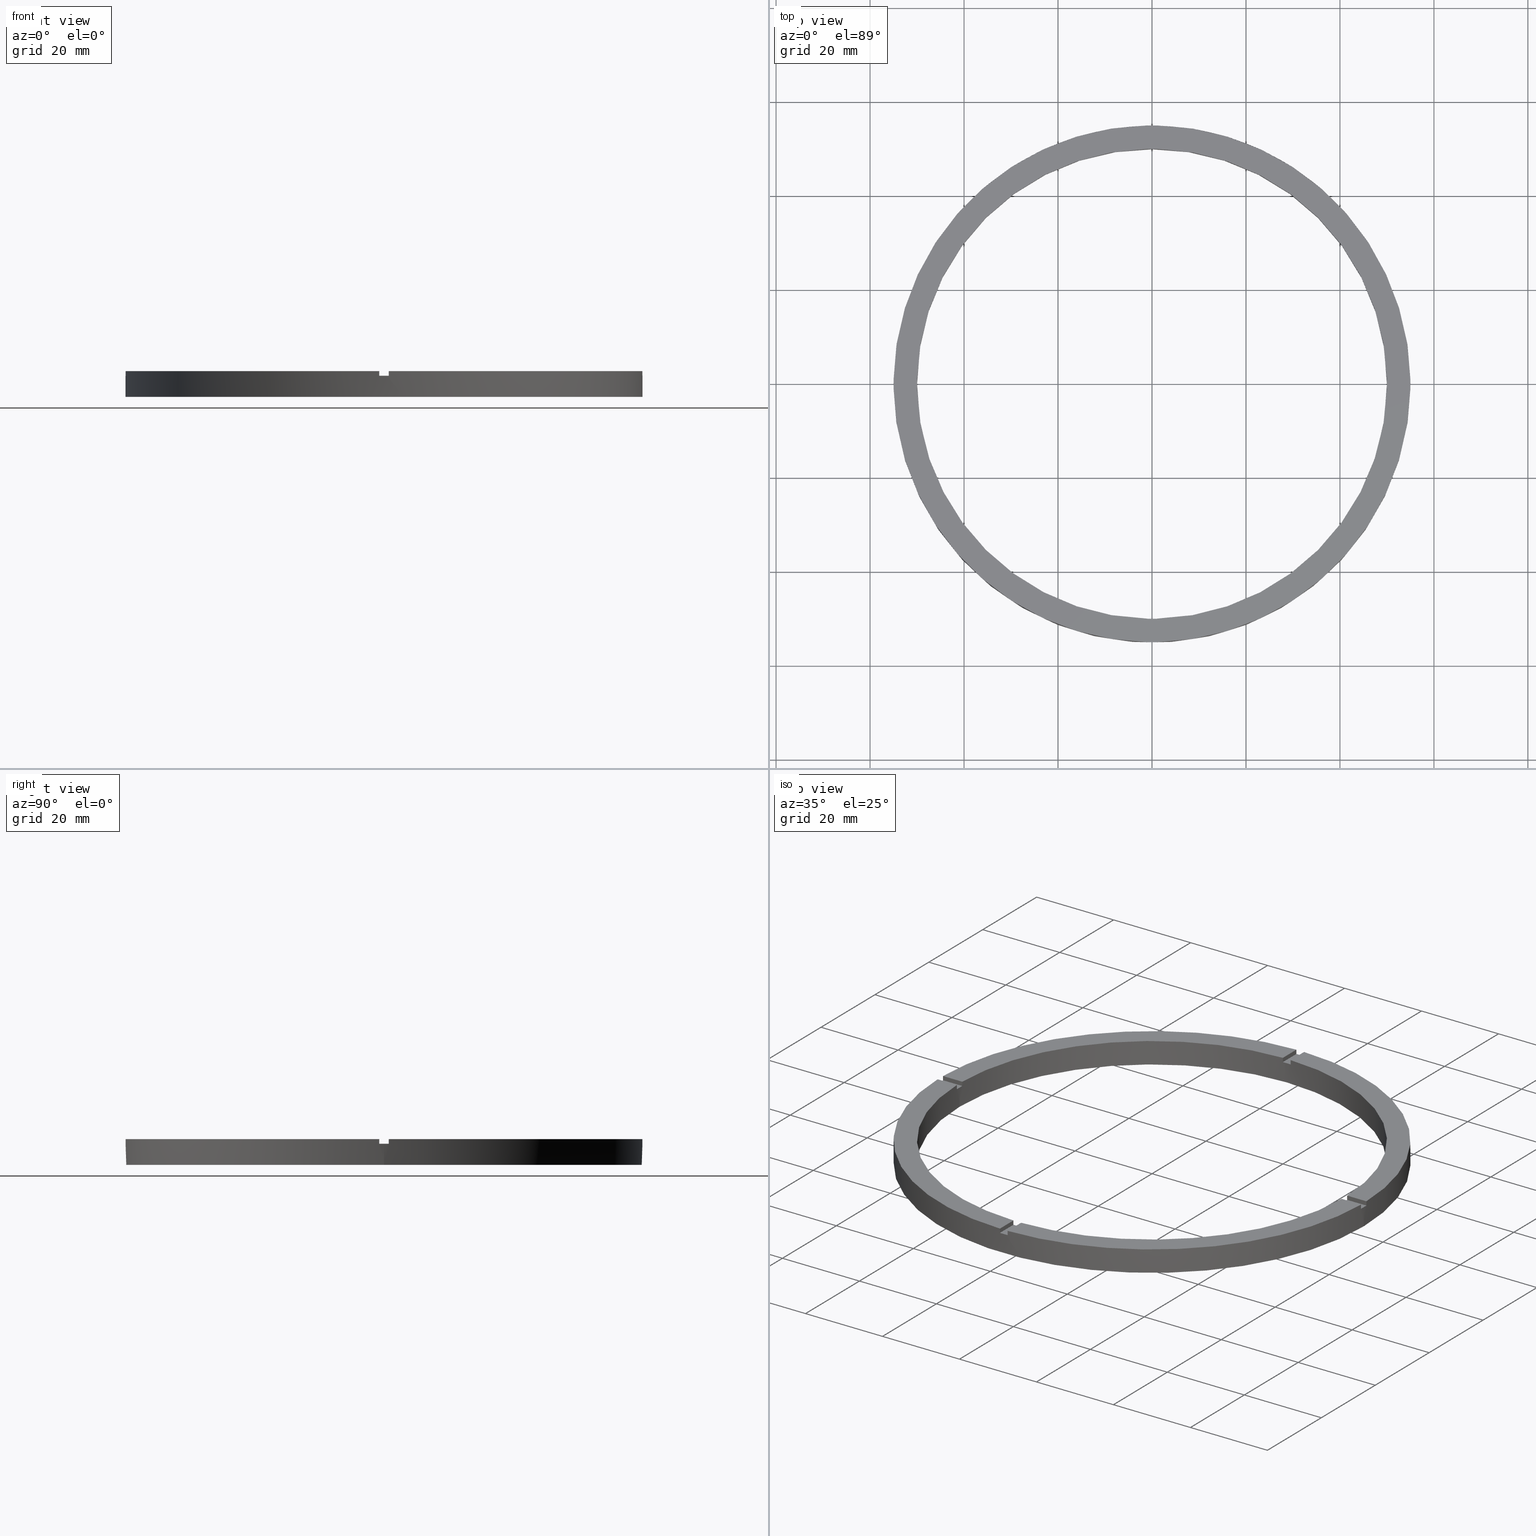
[diagram: canonical four-view strip — front | top / right | iso, engineering-drawing reading convention]
A machine part, canonical four-view strip (front | top / right | iso — engineering-drawing reading convention). The complete STEP part file that produces these views, byte-faithful:
ISO-10303-21;
HEADER;
FILE_DESCRIPTION (( 'STEP AP203' ),
    '1' );
FILE_NAME ('514225.step',
    '2024-12-26T02:49:54',
    ( 'MSI' ),
    ( '' ),
    'SwSTEP 2.0',
    'SolidWorks 2020',
    '' );
FILE_SCHEMA (( 'CONFIG_CONTROL_DESIGN' ));
ENDSEC;

DATA;
#1 = PLANE ( 'NONE',  #35 ) ;
#2 = AXIS2_PLACEMENT_3D ( 'NONE', #80, #230, #30 ) ;
#3 = DIRECTION ( 'NONE',  ( 0.000000000000000000, 0.000000000000000000, 1.000000000000000000 ) ) ;
#4 = CC_DESIGN_PERSON_AND_ORGANIZATION_ASSIGNMENT ( #600, #377, ( #568 ) ) ;
#5 = AXIS2_PLACEMENT_3D ( 'NONE', #548, #639, #750 ) ;
#6 = CARTESIAN_POINT ( 'NONE',  ( 49.98999899979995831, 0.9999999999998454570, 5.500000000000000000 ) ) ;
#7 = CARTESIAN_POINT ( 'NONE',  ( 0.9999999999999726885, 45.00000000000000000, 4.500000000000000000 ) ) ;
#8 = EDGE_CURVE ( 'NONE', #748, #681, #470, .T. ) ;
#9 = CARTESIAN_POINT ( 'NONE',  ( 0.000000000000000000, 0.000000000000000000, 4.500000000000000000 ) ) ;
#10 = CC_DESIGN_APPROVAL ( #244, ( #626 ) ) ;
#11 = PLANE ( 'NONE',  #283 ) ;
#12 = CIRCLE ( 'NONE', #231, 55.00000000000000000 ) ;
#13 = EDGE_CURVE ( 'NONE', #445, #421, #239, .T. ) ;
#14 = CARTESIAN_POINT ( 'NONE',  ( 54.99090833947008150, 0.9999999999998459010, 5.500000000000000000 ) ) ;
#15 = VECTOR ( 'NONE', #529, 1000.000000000000000 ) ;
#16 = DIRECTION ( 'NONE',  ( 0.000000000000000000, -0.000000000000000000, 1.000000000000000000 ) ) ;
#17 = LINE ( 'NONE', #228, #298 ) ;
#18 = DIRECTION ( 'NONE',  ( 1.000000000000000000, 0.000000000000000000, -0.000000000000000000 ) ) ;
#19 = VECTOR ( 'NONE', #368, 1000.000000000000000 ) ;
#20 = DIRECTION ( 'NONE',  ( 0.000000000000000000, 0.000000000000000000, 1.000000000000000000 ) ) ;
#21 = VECTOR ( 'NONE', #277, 1000.000000000000000 ) ;
#22 = LINE ( 'NONE', #579, #560 ) ;
#23 = FACE_OUTER_BOUND ( 'NONE', #212, .T. ) ;
#24 = PRODUCT_RELATED_PRODUCT_CATEGORY ( 'detail', '', ( #568 ) ) ;
#25 = LINE ( 'NONE', #289, #286 ) ;
#26 = AXIS2_PLACEMENT_3D ( 'NONE', #131, #581, #495 ) ;
#27 = VECTOR ( 'NONE', #351, 1000.000000000000000 ) ;
#28 = LINE ( 'NONE', #218, #291 ) ;
#29 = EDGE_CURVE ( 'NONE', #745, #480, #249, .T. ) ;
#30 = DIRECTION ( 'NONE',  ( -1.000000000000000000, 0.000000000000000000, 0.000000000000000000 ) ) ;
#31 = ADVANCED_FACE ( 'NONE', ( #243, #245 ), #585, .F. ) ;
#32 = DIRECTION ( 'NONE',  ( 0.000000000000000000, -0.000000000000000000, 1.000000000000000000 ) ) ;
#33 = CYLINDRICAL_SURFACE ( 'NONE', #345, 55.00000000000000000 ) ;
#34 = PERSON_AND_ORGANIZATION_ROLE ( 'creator' ) ;
#35 = AXIS2_PLACEMENT_3D ( 'NONE', #272, #520, #92 ) ;
#36 = LINE ( 'NONE', #241, #15 ) ;
#37 = CARTESIAN_POINT ( 'NONE',  ( -49.98999899979995121, -1.000000000000031974, 5.500000000000000000 ) ) ;
#38 = DIRECTION ( 'NONE',  ( 0.000000000000000000, 0.000000000000000000, 1.000000000000000000 ) ) ;
#39 = DATE_TIME_ROLE ( 'creation_date' ) ;
#40 = VECTOR ( 'NONE', #370, 1000.000000000000000 ) ;
#41 = PLANE ( 'NONE',  #423 ) ;
#42 = FACE_OUTER_BOUND ( 'NONE', #690, .T. ) ;
#43 = PLANE ( 'NONE',  #371 ) ;
#44 = LINE ( 'NONE', #756, #40 ) ;
#45 = PERSON_AND_ORGANIZATION ( #313, #81 ) ;
#46 = EDGE_CURVE ( 'NONE', #493, #222, #508, .T. ) ;
#47 = PERSON_AND_ORGANIZATION ( #313, #81 ) ;
#48 = PERSON_AND_ORGANIZATION ( #313, #81 ) ;
#49 = CARTESIAN_POINT ( 'NONE',  ( 0.9999999999998439026, -49.98999899979995831, 4.500000000000000000 ) ) ;
#50 = AXIS2_PLACEMENT_3D ( 'NONE', #772, #38, #778 ) ;
#51 = DATE_AND_TIME ( #347, #603 ) ;
#52 = APPROVAL_DATE_TIME ( #66, #597 ) ;
#53 = VECTOR ( 'NONE', #572, 1000.000000000000000 ) ;
#54 = DIRECTION ( 'NONE',  ( 0.000000000000000000, 0.000000000000000000, 1.000000000000000000 ) ) ;
#55 = DIRECTION ( 'NONE',  ( 0.000000000000000000, 0.000000000000000000, -1.000000000000000000 ) ) ;
#56 = EDGE_CURVE ( 'NONE', #482, #685, #247, .T. ) ;
#57 = CARTESIAN_POINT ( 'NONE',  ( -1.000000000000156097, -49.98999899979995121, 5.500000000000000000 ) ) ;
#58 = AXIS2_PLACEMENT_3D ( 'NONE', #158, #588, #253 ) ;
#59 = DIRECTION ( 'NONE',  ( 1.301042606982605074E-16, -1.000000000000000000, 0.000000000000000000 ) ) ;
#60 = CARTESIAN_POINT ( 'NONE',  ( 0.000000000000000000, 0.000000000000000000, 4.500000000000000000 ) ) ;
#61 = LINE ( 'NONE', #617, #308 ) ;
#62 = DIRECTION ( 'NONE',  ( -1.000000000000000000, 0.000000000000000000, 0.000000000000000000 ) ) ;
#63 = LOCAL_TIME ( 10, 49, 54.00000000000000000, #604 ) ;
#64 = EDGE_CURVE ( 'NONE', #681, #203, #509, .T. ) ;
#65 = DIRECTION ( 'NONE',  ( 1.000000000000000000, 0.000000000000000000, 0.000000000000000000 ) ) ;
#66 = DATE_AND_TIME ( #318, #79 ) ;
#67 = DIRECTION ( 'NONE',  ( -1.000000000000000000, 0.000000000000000000, 0.000000000000000000 ) ) ;
#68 = CARTESIAN_POINT ( 'NONE',  ( 0.000000000000000000, 0.000000000000000000, 4.500000000000000000 ) ) ;
#69 = PERSON_AND_ORGANIZATION ( #313, #81 ) ;
#70 = CALENDAR_DATE ( 2024, 26, 12 ) ;
#71 = CC_DESIGN_PERSON_AND_ORGANIZATION_ASSIGNMENT ( #45, #34, ( #606 ) ) ;
#72 = DIRECTION ( 'NONE',  ( -1.301042606982605074E-16, 1.000000000000000000, -0.000000000000000000 ) ) ;
#73 = DIRECTION ( 'NONE',  ( 1.000000000000000000, 0.000000000000000000, 0.000000000000000000 ) ) ;
#74 = AXIS2_PLACEMENT_3D ( 'NONE', #631, #731, #265 ) ;
#75 = CALENDAR_DATE ( 2024, 26, 12 ) ;
#76 = DIRECTION ( 'NONE',  ( -1.301042606982605074E-16, 1.000000000000000000, 0.000000000000000000 ) ) ;
#77 = ADVANCED_FACE ( 'NONE', ( #42 ), #331, .F. ) ;
#78 = PERSON_AND_ORGANIZATION_ROLE ( 'design_supplier' ) ;
#79 = LOCAL_TIME ( 10, 49, 54.00000000000000000, #339 ) ;
#80 = CARTESIAN_POINT ( 'NONE',  ( 0.000000000000000000, 0.000000000000000000, 5.500000000000000000 ) ) ;
#81 = ORGANIZATION ( 'δָ��', 'δָ��', '' ) ;
#82 = COORDINATED_UNIVERSAL_TIME_OFFSET ( 8, 0, .AHEAD. ) ;
#83 = CC_DESIGN_SECURITY_CLASSIFICATION ( #374, ( #626 ) ) ;
#84 = AXIS2_PLACEMENT_3D ( 'NONE', #489, #516, #76 ) ;
#85 = DIRECTION ( 'NONE',  ( -0.000000000000000000, -1.000000000000000000, -0.000000000000000000 ) ) ;
#86 = DIRECTION ( 'NONE',  ( -0.000000000000000000, 0.000000000000000000, 1.000000000000000000 ) ) ;
#87 = EDGE_CURVE ( 'NONE', #748, #702, #321, .T. ) ;
#88 = AXIS2_PLACEMENT_3D ( 'NONE', #625, #376, #512 ) ;
#89 = DIRECTION ( 'NONE',  ( 8.673617379884034239E-17, -1.000000000000000000, 0.000000000000000000 ) ) ;
#90 = DIRECTION ( 'NONE',  ( 1.000000000000000000, 0.000000000000000000, 0.000000000000000000 ) ) ;
#91 = EDGE_CURVE ( 'NONE', #196, #687, #61, .T. ) ;
#92 = DIRECTION ( 'NONE',  ( 1.000000000000000000, 0.000000000000000000, -0.000000000000000000 ) ) ;
#93 = CARTESIAN_POINT ( 'NONE',  ( -55.00000000000000000, 0.000000000000000000, 4.500000000000000000 ) ) ;
#94 = DIRECTION ( 'NONE',  ( 1.000000000000000000, -0.000000000000000000, 0.000000000000000000 ) ) ;
#95 = CARTESIAN_POINT ( 'NONE',  ( 55.00000000000000000, 6.735557395310442615E-15, 4.500000000000000000 ) ) ;
#96 = DIRECTION ( 'NONE',  ( 1.000000000000000000, 0.000000000000000000, -0.000000000000000000 ) ) ;
#97 = DIRECTION ( 'NONE',  ( -1.000000000000000000, -8.673617379884034239E-17, 0.000000000000000000 ) ) ;
#98 = DIRECTION ( 'NONE',  ( -0.000000000000000000, -1.000000000000000000, -0.000000000000000000 ) ) ;
#99 = DIRECTION ( 'NONE',  ( -0.000000000000000000, -0.000000000000000000, -1.000000000000000000 ) ) ;
#100 = CARTESIAN_POINT ( 'NONE',  ( -55.00000000000000000, 0.000000000000000000, 5.500000000000000000 ) ) ;
#101 = EDGE_CURVE ( 'NONE', #481, #222, #569, .T. ) ;
#102 = DIRECTION ( 'NONE',  ( 1.000000000000000000, 0.000000000000000000, 0.000000000000000000 ) ) ;
#103 = AXIS2_PLACEMENT_3D ( 'NONE', #302, #94, #55 ) ;
#104 = LINE ( 'NONE', #251, #634 ) ;
#105 = DIRECTION ( 'NONE',  ( 0.000000000000000000, 0.000000000000000000, 1.000000000000000000 ) ) ;
#106 = CARTESIAN_POINT ( 'NONE',  ( 0.000000000000000000, 0.000000000000000000, 5.500000000000000000 ) ) ;
#107 = VECTOR ( 'NONE', #360, 1000.000000000000000 ) ;
#108 = LINE ( 'NONE', #317, #392 ) ;
#109 = EDGE_CURVE ( 'NONE', #435, #187, #558, .T. ) ;
#110 = CIRCLE ( 'NONE', #762, 55.00000000000000000 ) ;
#111 = FACE_OUTER_BOUND ( 'NONE', #198, .T. ) ;
#112 = DIRECTION ( 'NONE',  ( -0.000000000000000000, -0.000000000000000000, -1.000000000000000000 ) ) ;
#113 = VECTOR ( 'NONE', #536, 1000.000000000000000 ) ;
#114 = AXIS2_PLACEMENT_3D ( 'NONE', #400, #559, #543 ) ;
#115 = LINE ( 'NONE', #744, #379 ) ;
#116 = EDGE_CURVE ( 'NONE', #447, #457, #297, .T. ) ;
#117 = CIRCLE ( 'NONE', #531, 50.00000000000000000 ) ;
#118 = FACE_OUTER_BOUND ( 'NONE', #448, .T. ) ;
#119 = PLANE ( 'NONE',  #557 ) ;
#120 = FACE_OUTER_BOUND ( 'NONE', #224, .T. ) ;
#121 = LINE ( 'NONE', #598, #113 ) ;
#122 = CC_DESIGN_DATE_AND_TIME_ASSIGNMENT ( #573, #39, ( #606 ) ) ;
#123 = CIRCLE ( 'NONE', #5, 50.00000000000000000 ) ;
#124 = VECTOR ( 'NONE', #20, 1000.000000000000000 ) ;
#125 = ADVANCED_FACE ( 'NONE', ( #304 ), #119, .T. ) ;
#126 = APPLICATION_CONTEXT ( 'configuration controlled 3d designs of mechanical parts and assemblies' ) ;
#127 = EDGE_CURVE ( 'NONE', #438, #151, #17, .T. ) ;
#128 = VECTOR ( 'NONE', #743, 1000.000000000000000 ) ;
#129 = CIRCLE ( 'NONE', #316, 55.00000000000000000 ) ;
#130 = LINE ( 'NONE', #301, #128 ) ;
#131 = CARTESIAN_POINT ( 'NONE',  ( 0.000000000000000000, 0.000000000000000000, 5.500000000000000000 ) ) ;
#132 = DIRECTION ( 'NONE',  ( 1.000000000000000000, 1.951563910473907735E-16, -0.000000000000000000 ) ) ;
#133 = VECTOR ( 'NONE', #59, 1000.000000000000000 ) ;
#134 = ADVANCED_FACE ( 'NONE', ( #538 ), #556, .T. ) ;
#135 = CIRCLE ( 'NONE', #732, 55.00000000000000000 ) ;
#136 = CYLINDRICAL_SURFACE ( 'NONE', #330, 50.00000000000000000 ) ;
#137 = LINE ( 'NONE', #637, #407 ) ;
#138 = PLANE ( 'NONE',  #642 ) ;
#139 = CARTESIAN_POINT ( 'NONE',  ( -54.99090833947007440, -1.000000000000032863, 4.500000000000000000 ) ) ;
#140 = CIRCLE ( 'NONE', #170, 50.00000000000000000 ) ;
#141 = EDGE_CURVE ( 'NONE', #457, #702, #22, .T. ) ;
#142 = VECTOR ( 'NONE', #99, 1000.000000000000000 ) ;
#143 = ADVANCED_FACE ( 'NONE', ( #280 ), #337, .T. ) ;
#144 = FACE_OUTER_BOUND ( 'NONE', #722, .T. ) ;
#145 = CARTESIAN_POINT ( 'NONE',  ( 0.000000000000000000, 0.000000000000000000, 4.500000000000000000 ) ) ;
#146 = ORIENTED_EDGE ( 'NONE', *, *, #764, .T. ) ;
#147 = DIRECTION ( 'NONE',  ( -1.000000000000000000, 0.000000000000000000, 0.000000000000000000 ) ) ;
#148 = ORIENTED_EDGE ( 'NONE', *, *, #394, .T. ) ;
#149 = ORIENTED_EDGE ( 'NONE', *, *, #506, .F. ) ;
#150 = VECTOR ( 'NONE', #610, 1000.000000000000000 ) ;
#151 = VERTEX_POINT ( 'NONE', #248 ) ;
#152 = VECTOR ( 'NONE', #751, 1000.000000000000000 ) ;
#153 = AXIS2_PLACEMENT_3D ( 'NONE', #189, #322, #96 ) ;
#154 = ORIENTED_EDGE ( 'NONE', *, *, #269, .T. ) ;
#155 = DIRECTION ( 'NONE',  ( -1.000000000000000000, -1.951563910473907735E-16, 0.000000000000000000 ) ) ;
#156 = ORIENTED_EDGE ( 'NONE', *, *, #229, .T. ) ;
#157 = VERTEX_POINT ( 'NONE', #584 ) ;
#158 = CARTESIAN_POINT ( 'NONE',  ( 0.000000000000000000, 0.000000000000000000, 4.500000000000000000 ) ) ;
#159 = ORIENTED_EDGE ( 'NONE', *, *, #553, .F. ) ;
#160 = ORIENTED_EDGE ( 'NONE', *, *, #672, .F. ) ;
#161 = CARTESIAN_POINT ( 'NONE',  ( 0.000000000000000000, 0.000000000000000000, 5.500000000000000000 ) ) ;
#162 = ORIENTED_EDGE ( 'NONE', *, *, #91, .T. ) ;
#163 = ORIENTED_EDGE ( 'NONE', *, *, #8, .T. ) ;
#164 = ORIENTED_EDGE ( 'NONE', *, *, #390, .F. ) ;
#165 = ORIENTED_EDGE ( 'NONE', *, *, #466, .T. ) ;
#166 = EDGE_LOOP ( 'NONE', ( #204, #723, #186, #206, #216, #164, #433, #417, #725, #428, #209, #678 ) ) ;
#167 = ORIENTED_EDGE ( 'NONE', *, *, #127, .F. ) ;
#168 = ORIENTED_EDGE ( 'NONE', *, *, #527, .T. ) ;
#169 = ORIENTED_EDGE ( 'NONE', *, *, #13, .F. ) ;
#170 = AXIS2_PLACEMENT_3D ( 'NONE', #775, #246, #102 ) ;
#171 = VERTEX_POINT ( 'NONE', #530 ) ;
#172 = ORIENTED_EDGE ( 'NONE', *, *, #553, .T. ) ;
#173 = ORIENTED_EDGE ( 'NONE', *, *, #571, .T. ) ;
#174 = ORIENTED_EDGE ( 'NONE', *, *, #372, .F. ) ;
#175 = DIRECTION ( 'NONE',  ( 0.000000000000000000, 1.000000000000000000, 0.000000000000000000 ) ) ;
#176 = ORIENTED_EDGE ( 'NONE', *, *, #717, .F. ) ;
#177 = ORIENTED_EDGE ( 'NONE', *, *, #752, .T. ) ;
#178 = DIRECTION ( 'NONE',  ( 1.000000000000000000, 0.000000000000000000, 0.000000000000000000 ) ) ;
#179 = ORIENTED_EDGE ( 'NONE', *, *, #754, .F. ) ;
#180 = AXIS2_PLACEMENT_3D ( 'NONE', #599, #629, #258 ) ;
#181 = ORIENTED_EDGE ( 'NONE', *, *, #8, .F. ) ;
#182 = ORIENTED_EDGE ( 'NONE', *, *, #533, .F. ) ;
#183 = ORIENTED_EDGE ( 'NONE', *, *, #116, .T. ) ;
#184 = VERTEX_POINT ( 'NONE', #712 ) ;
#185 = VERTEX_POINT ( 'NONE', #93 ) ;
#186 = ORIENTED_EDGE ( 'NONE', *, *, #46, .F. ) ;
#187 = VERTEX_POINT ( 'NONE', #242 ) ;
#188 = VERTEX_POINT ( 'NONE', #777 ) ;
#189 = CARTESIAN_POINT ( 'NONE',  ( 0.000000000000000000, 0.000000000000000000, 5.500000000000000000 ) ) ;
#190 = VERTEX_POINT ( 'NONE', #290 ) ;
#191 = VERTEX_POINT ( 'NONE', #37 ) ;
#192 = ORIENTED_EDGE ( 'NONE', *, *, #614, .F. ) ;
#193 = ORIENTED_EDGE ( 'NONE', *, *, #13, .T. ) ;
#194 = CARTESIAN_POINT ( 'NONE',  ( -49.98999899979995121, -1.000000000000031974, 5.500000000000000000 ) ) ;
#195 = ORIENTED_EDGE ( 'NONE', *, *, #335, .F. ) ;
#196 = VERTEX_POINT ( 'NONE', #139 ) ;
#197 = ORIENTED_EDGE ( 'NONE', *, *, #510, .T. ) ;
#198 = EDGE_LOOP ( 'NONE', ( #168, #703, #449, #159, #442, #146 ) ) ;
#199 = VERTEX_POINT ( 'NONE', #6 ) ;
#200 = VERTEX_POINT ( 'NONE', #57 ) ;
#201 = ORIENTED_EDGE ( 'NONE', *, *, #390, .T. ) ;
#202 = ORIENTED_EDGE ( 'NONE', *, *, #210, .T. ) ;
#203 = VERTEX_POINT ( 'NONE', #545 ) ;
#204 = ORIENTED_EDGE ( 'NONE', *, *, #233, .T. ) ;
#205 = CARTESIAN_POINT ( 'NONE',  ( 0.000000000000000000, 0.000000000000000000, 4.500000000000000000 ) ) ;
#206 = ORIENTED_EDGE ( 'NONE', *, *, #628, .F. ) ;
#207 = ORIENTED_EDGE ( 'NONE', *, *, #342, .F. ) ;
#208 = ORIENTED_EDGE ( 'NONE', *, *, #649, .F. ) ;
#209 = ORIENTED_EDGE ( 'NONE', *, *, #29, .T. ) ;
#210 = EDGE_CURVE ( 'NONE', #447, #748, #549, .T. ) ;
#211 = ORIENTED_EDGE ( 'NONE', *, *, #752, .F. ) ;
#212 = EDGE_LOOP ( 'NONE', ( #707, #686, #728, #441 ) ) ;
#213 = EDGE_LOOP ( 'NONE', ( #491, #704, #737, #484 ) ) ;
#214 = EDGE_LOOP ( 'NONE', ( #476, #488, #179, #156 ) ) ;
#215 = EDGE_LOOP ( 'NONE', ( #439, #699 ) ) ;
#216 = ORIENTED_EDGE ( 'NONE', *, *, #567, .T. ) ;
#217 = ORIENTED_EDGE ( 'NONE', *, *, #567, .F. ) ;
#218 = CARTESIAN_POINT ( 'NONE',  ( 44.99999999999999289, 0.9999999999998450129, 4.500000000000000000 ) ) ;
#219 = VERTEX_POINT ( 'NONE', #260 ) ;
#220 = ORIENTED_EDGE ( 'NONE', *, *, #116, .F. ) ;
#221 = DIRECTION ( 'NONE',  ( 1.000000000000000000, 0.000000000000000000, -0.000000000000000000 ) ) ;
#222 = VERTEX_POINT ( 'NONE', #358 ) ;
#223 = ORIENTED_EDGE ( 'NONE', *, *, #64, .F. ) ;
#224 = EDGE_LOOP ( 'NONE', ( #425, #719, #715, #692 ) ) ;
#225 = ORIENTED_EDGE ( 'NONE', *, *, #310, .T. ) ;
#226 = ORIENTED_EDGE ( 'NONE', *, *, #506, .T. ) ;
#227 = CARTESIAN_POINT ( 'NONE',  ( 49.98999899979995121, -1.000000000000154543, 5.500000000000000000 ) ) ;
#228 = CARTESIAN_POINT ( 'NONE',  ( 0.9999999999998445688, -54.99090833947008150, 5.500000000000000000 ) ) ;
#229 = EDGE_CURVE ( 'NONE', #171, #419, #300, .T. ) ;
#230 = DIRECTION ( 'NONE',  ( -0.000000000000000000, -0.000000000000000000, -1.000000000000000000 ) ) ;
#231 = AXIS2_PLACEMENT_3D ( 'NONE', #620, #503, #770 ) ;
#232 = MECHANICAL_CONTEXT ( 'NONE', #126, 'mechanical' ) ;
#233 = EDGE_CURVE ( 'NONE', #680, #481, #554, .T. ) ;
#234 = CARTESIAN_POINT ( 'NONE',  ( 44.99999999999999289, -1.000000000000154987, 4.500000000000000000 ) ) ;
#235 = APPROVAL_ROLE ( '' ) ;
#236 = ADVANCED_FACE ( 'NONE', ( #561 ), #138, .F. ) ;
#237 = CC_DESIGN_PERSON_AND_ORGANIZATION_ASSIGNMENT ( #343, #333, ( #374 ) ) ;
#238 = AXIS2_PLACEMENT_3D ( 'NONE', #759, #105, #566 ) ;
#239 = LINE ( 'NONE', #622, #763 ) ;
#240 = ADVANCED_FACE ( 'NONE', ( #303 ), #33, .T. ) ;
#241 = CARTESIAN_POINT ( 'NONE',  ( -1.000000000000155431, -54.99090833947007440, 5.500000000000000000 ) ) ;
#242 = CARTESIAN_POINT ( 'NONE',  ( 0.9999999999999726885, 49.98999899979995121, 5.500000000000000000 ) ) ;
#243 = FACE_OUTER_BOUND ( 'NONE', #215, .T. ) ;
#244 = APPROVAL ( #623, 'δָ��' ) ;
#245 = FACE_BOUND ( 'NONE', #688, .T. ) ;
#246 = DIRECTION ( 'NONE',  ( -0.000000000000000000, 0.000000000000000000, 1.000000000000000000 ) ) ;
#247 = CIRCLE ( 'NONE', #367, 55.00000000000000000 ) ;
#248 = CARTESIAN_POINT ( 'NONE',  ( 0.9999999999998445688, -54.99090833947008150, 4.500000000000000000 ) ) ;
#249 = CIRCLE ( 'NONE', #50, 50.00000000000000000 ) ;
#250 = EDGE_CURVE ( 'NONE', #447, #203, #305, .T. ) ;
#251 = CARTESIAN_POINT ( 'NONE',  ( 44.99999999999999289, -1.000000000000154987, 5.500000000000000000 ) ) ;
#252 = APPROVAL ( #456, 'δָ��' ) ;
#253 = DIRECTION ( 'NONE',  ( 1.000000000000000000, 0.000000000000000000, 0.000000000000000000 ) ) ;
#254 = CARTESIAN_POINT ( 'NONE',  ( 0.000000000000000000, 0.000000000000000000, 4.500000000000000000 ) ) ;
#255 = PLANE ( 'NONE',  #103 ) ;
#256 = EDGE_CURVE ( 'NONE', #222, #493, #285, .T. ) ;
#257 = DIRECTION ( 'NONE',  ( 0.000000000000000000, 0.000000000000000000, 1.000000000000000000 ) ) ;
#258 = DIRECTION ( 'NONE',  ( 1.000000000000000000, 0.000000000000000000, 0.000000000000000000 ) ) ;
#259 = EDGE_CURVE ( 'NONE', #482, #191, #546, .T. ) ;
#260 = CARTESIAN_POINT ( 'NONE',  ( -55.00000000000000000, 0.000000000000000000, 0.000000000000000000 ) ) ;
#261 = PLANE ( 'NONE',  #513 ) ;
#262 = EDGE_CURVE ( 'NONE', #219, #710, #12, .T. ) ;
#263 = CARTESIAN_POINT ( 'NONE',  ( 0.000000000000000000, 0.000000000000000000, 5.500000000000000000 ) ) ;
#264 = DIRECTION ( 'NONE',  ( 1.000000000000000000, 0.000000000000000000, 0.000000000000000000 ) ) ;
#265 = DIRECTION ( 'NONE',  ( 1.000000000000000000, 0.000000000000000000, 0.000000000000000000 ) ) ;
#266 = PLANE ( 'NONE',  #591 ) ;
#267 = APPLICATION_PROTOCOL_DEFINITION ( 'international standard', 'config_control_design', 1994, #582 ) ;
#268 = ADVANCED_FACE ( 'NONE', ( #281 ), #771, .T. ) ;
#269 = EDGE_CURVE ( 'NONE', #419, #685, #36, .T. ) ;
#270 = PERSON_AND_ORGANIZATION_ROLE ( 'creator' ) ;
#271 = ADVANCED_FACE ( 'NONE', ( #275 ), #336, .T. ) ;
#272 = CARTESIAN_POINT ( 'NONE',  ( 0.000000000000000000, 0.000000000000000000, 5.500000000000000000 ) ) ;
#273 = CARTESIAN_POINT ( 'NONE',  ( -1.000000000000027311, 49.98999899979995121, 5.500000000000000000 ) ) ;
#274 = VECTOR ( 'NONE', #98, 1000.000000000000000 ) ;
#275 = FACE_OUTER_BOUND ( 'NONE', #414, .T. ) ;
#276 = ADVANCED_FACE ( 'NONE', ( #23 ), #1, .T. ) ;
#277 = DIRECTION ( 'NONE',  ( 0.000000000000000000, 0.000000000000000000, 1.000000000000000000 ) ) ;
#278 = EDGE_CURVE ( 'NONE', #151, #673, #25, .T. ) ;
#279 = DIRECTION ( 'NONE',  ( 1.000000000000000000, 0.000000000000000000, 0.000000000000000000 ) ) ;
#280 = FACE_OUTER_BOUND ( 'NONE', #213, .T. ) ;
#281 = FACE_OUTER_BOUND ( 'NONE', #214, .T. ) ;
#282 = CARTESIAN_POINT ( 'NONE',  ( 0.9999999999998439026, -49.98999899979995831, 5.500000000000000000 ) ) ;
#283 = AXIS2_PLACEMENT_3D ( 'NONE', #537, #611, #18 ) ;
#284 = EDGE_CURVE ( 'NONE', #435, #702, #288, .T. ) ;
#285 = CIRCLE ( 'NONE', #507, 50.00000000000000000 ) ;
#286 = VECTOR ( 'NONE', #72, 1000.000000000000000 ) ;
#287 = CARTESIAN_POINT ( 'NONE',  ( 49.98999899979995831, 0.9999999999998454570, 5.500000000000000000 ) ) ;
#288 = CIRCLE ( 'NONE', #646, 50.00000000000000000 ) ;
#289 = CARTESIAN_POINT ( 'NONE',  ( 0.9999999999998432365, -45.00000000000017764, 4.500000000000000000 ) ) ;
#290 = CARTESIAN_POINT ( 'NONE',  ( -50.00000000000000000, 0.000000000000000000, 4.500000000000000000 ) ) ;
#291 = VECTOR ( 'NONE', #324, 1000.000000000000000 ) ;
#292 = DIRECTION ( 'NONE',  ( -0.000000000000000000, 0.000000000000000000, 1.000000000000000000 ) ) ;
#293 = DIRECTION ( 'NONE',  ( -0.000000000000000000, -0.000000000000000000, -1.000000000000000000 ) ) ;
#294 = CC_DESIGN_PERSON_AND_ORGANIZATION_ASSIGNMENT ( #47, #78, ( #626 ) ) ;
#295 = VECTOR ( 'NONE', #112, 1000.000000000000000 ) ;
#296 = DIRECTION ( 'NONE',  ( -1.951563910473907735E-16, 1.000000000000000000, 0.000000000000000000 ) ) ;
#297 = LINE ( 'NONE', #451, #295 ) ;
#298 = VECTOR ( 'NONE', #328, 1000.000000000000000 ) ;
#299 = CARTESIAN_POINT ( 'NONE',  ( 0.000000000000000000, 0.000000000000000000, 4.500000000000000000 ) ) ;
#300 = LINE ( 'NONE', #409, #27 ) ;
#301 = CARTESIAN_POINT ( 'NONE',  ( -50.00000000000000000, 0.000000000000000000, 5.500000000000000000 ) ) ;
#302 = CARTESIAN_POINT ( 'NONE',  ( 0.9999999999999726885, 45.00000000000000000, 4.500000000000000000 ) ) ;
#303 = FACE_OUTER_BOUND ( 'NONE', #741, .T. ) ;
#304 = FACE_OUTER_BOUND ( 'NONE', #485, .T. ) ;
#305 = CIRCLE ( 'NONE', #26, 55.00000000000000000 ) ;
#306 = DIRECTION ( 'NONE',  ( 1.000000000000000000, 0.000000000000000000, 0.000000000000000000 ) ) ;
#307 = PRODUCT_DEFINITION_SHAPE ( 'NONE', 'NONE',  #606 ) ;
#308 = VECTOR ( 'NONE', #132, 1000.000000000000000 ) ;
#309 = CARTESIAN_POINT ( 'NONE',  ( -1.000000000000027311, 45.00000000000000000, 5.500000000000000000 ) ) ;
#310 = EDGE_CURVE ( 'NONE', #185, #196, #542, .T. ) ;
#311 = PLANE ( 'NONE',  #114 ) ;
#312 = DIRECTION ( 'NONE',  ( 0.000000000000000000, 0.000000000000000000, 1.000000000000000000 ) ) ;
#313 = PERSON ( 'δָ��', 'δָ��', 'δָ��', ('δָ��'), ('δָ��'), ('δָ��') ) ;
#314 = LOCAL_TIME ( 10, 49, 54.00000000000000000, #82 ) ;
#315 = PLANE ( 'NONE',  #153 ) ;
#316 = AXIS2_PLACEMENT_3D ( 'NONE', #781, #292, #306 ) ;
#317 = CARTESIAN_POINT ( 'NONE',  ( -54.99090833947007440, -1.000000000000032863, 5.500000000000000000 ) ) ;
#318 = CALENDAR_DATE ( 2024, 26, 12 ) ;
#319 = APPROVAL_PERSON_ORGANIZATION ( #69, #252, #774 ) ;
#320 = COORDINATED_UNIVERSAL_TIME_OFFSET ( 8, 0, .AHEAD. ) ;
#321 = LINE ( 'NONE', #273, #53 ) ;
#322 = DIRECTION ( 'NONE',  ( 0.000000000000000000, 0.000000000000000000, 1.000000000000000000 ) ) ;
#323 = PERSON_AND_ORGANIZATION ( #313, #81 ) ;
#324 = DIRECTION ( 'NONE',  ( -1.000000000000000000, -8.673617379884034239E-17, -0.000000000000000000 ) ) ;
#325 = COORDINATED_UNIVERSAL_TIME_OFFSET ( 8, 0, .AHEAD. ) ;
#326 = AXIS2_PLACEMENT_3D ( 'NONE', #522, #471, #279 ) ;
#327 = AXIS2_PLACEMENT_3D ( 'NONE', #60, #645, #178 ) ;
#328 = DIRECTION ( 'NONE',  ( -0.000000000000000000, -0.000000000000000000, -1.000000000000000000 ) ) ;
#329 = CARTESIAN_POINT ( 'NONE',  ( -45.00000000000018474, -1.000000000000031086, 4.500000000000000000 ) ) ;
#330 = AXIS2_PLACEMENT_3D ( 'NONE', #384, #532, #62 ) ;
#331 = PLANE ( 'NONE',  #84 ) ;
#332 = APPROVAL_PERSON_ORGANIZATION ( #323, #244, #492 ) ;
#333 = PERSON_AND_ORGANIZATION_ROLE ( 'classification_officer' ) ;
#334 = SHAPE_DEFINITION_REPRESENTATION ( #307, #683 ) ;
#335 = EDGE_CURVE ( 'NONE', #188, #157, #28, .T. ) ;
#336 = PLANE ( 'NONE',  #494 ) ;
#337 = PLANE ( 'NONE',  #486 ) ;
#338 = DIRECTION ( 'NONE',  ( 1.000000000000000000, 0.000000000000000000, -0.000000000000000000 ) ) ;
#339 = COORDINATED_UNIVERSAL_TIME_OFFSET ( 8, 0, .AHEAD. ) ;
#340 = APPROVAL_DATE_TIME ( #578, #252 ) ;
#341 = DIRECTION ( 'NONE',  ( -0.000000000000000000, -0.000000000000000000, -1.000000000000000000 ) ) ;
#342 = EDGE_CURVE ( 'NONE', #191, #200, #388, .T. ) ;
#343 = PERSON_AND_ORGANIZATION ( #313, #81 ) ;
#344 = CARTESIAN_POINT ( 'NONE',  ( 0.000000000000000000, 0.000000000000000000, 5.500000000000000000 ) ) ;
#345 = AXIS2_PLACEMENT_3D ( 'NONE', #386, #500, #147 ) ;
#346 = APPROVAL_PERSON_ORGANIZATION ( #48, #597, #235 ) ;
#347 = CALENDAR_DATE ( 2024, 26, 12 ) ;
#348 = AXIS2_PLACEMENT_3D ( 'NONE', #205, #405, #504 ) ;
#349 = CARTESIAN_POINT ( 'NONE',  ( 49.98999899979995121, -1.000000000000154543, 4.500000000000000000 ) ) ;
#350 = CARTESIAN_POINT ( 'NONE',  ( -49.98999899979995121, 0.9999999999999681366, 5.500000000000000000 ) ) ;
#351 = DIRECTION ( 'NONE',  ( 1.301042606982605074E-16, -1.000000000000000000, 0.000000000000000000 ) ) ;
#352 = CARTESIAN_POINT ( 'NONE',  ( 0.000000000000000000, 0.000000000000000000, 0.000000000000000000 ) ) ;
#353 = CARTESIAN_POINT ( 'NONE',  ( 44.99999999999999289, 0.9999999999998450129, 4.500000000000000000 ) ) ;
#354 = DIRECTION ( 'NONE',  ( 1.000000000000000000, 0.000000000000000000, 0.000000000000000000 ) ) ;
#355 = DIRECTION ( 'NONE',  ( 0.000000000000000000, 0.000000000000000000, 1.000000000000000000 ) ) ;
#356 = DIRECTION ( 'NONE',  ( -0.000000000000000000, -0.000000000000000000, -1.000000000000000000 ) ) ;
#357 = CARTESIAN_POINT ( 'NONE',  ( -54.99090833947007440, 0.9999999999999672484, 4.500000000000000000 ) ) ;
#358 = CARTESIAN_POINT ( 'NONE',  ( 50.00000000000000000, 6.123233995736766085E-15, 0.000000000000000000 ) ) ;
#359 = CARTESIAN_POINT ( 'NONE',  ( 54.99090833947007440, -1.000000000000154099, 5.500000000000000000 ) ) ;
#360 = DIRECTION ( 'NONE',  ( 0.000000000000000000, 1.000000000000000000, 0.000000000000000000 ) ) ;
#361 = DIRECTION ( 'NONE',  ( -0.000000000000000000, -0.000000000000000000, -1.000000000000000000 ) ) ;
#362 = AXIS2_PLACEMENT_3D ( 'NONE', #344, #525, #713 ) ;
#363 = DIRECTION ( 'NONE',  ( -0.000000000000000000, -0.000000000000000000, -1.000000000000000000 ) ) ;
#364 = DIRECTION ( 'NONE',  ( 1.000000000000000000, 0.000000000000000000, 0.000000000000000000 ) ) ;
#365 = CARTESIAN_POINT ( 'NONE',  ( 0.9999999999999726885, 54.99090833947007440, 5.500000000000000000 ) ) ;
#366 = EDGE_CURVE ( 'NONE', #171, #200, #650, .T. ) ;
#367 = AXIS2_PLACEMENT_3D ( 'NONE', #468, #765, #73 ) ;
#368 = DIRECTION ( 'NONE',  ( -0.000000000000000000, -0.000000000000000000, -1.000000000000000000 ) ) ;
#369 = ADVANCED_FACE ( 'NONE', ( #630 ), #261, .F. ) ;
#370 = DIRECTION ( 'NONE',  ( -1.301042606982605074E-16, 1.000000000000000000, -0.000000000000000000 ) ) ;
#371 = AXIS2_PLACEMENT_3D ( 'NONE', #353, #782, #97 ) ;
#372 = EDGE_CURVE ( 'NONE', #738, #185, #643, .T. ) ;
#373 = DIRECTION ( 'NONE',  ( 0.000000000000000000, 0.000000000000000000, 1.000000000000000000 ) ) ;
#374 = SECURITY_CLASSIFICATION ( '', '', #526 ) ;
#375 = DIRECTION ( 'NONE',  ( 1.000000000000000000, 1.951563910473907735E-16, -0.000000000000000000 ) ) ;
#376 = DIRECTION ( 'NONE',  ( 0.000000000000000000, 0.000000000000000000, 1.000000000000000000 ) ) ;
#377 = PERSON_AND_ORGANIZATION_ROLE ( 'design_owner' ) ;
#378 = CIRCLE ( 'NONE', #327, 55.00000000000000000 ) ;
#379 = VECTOR ( 'NONE', #355, 1000.000000000000000 ) ;
#380 = LINE ( 'NONE', #100, #381 ) ;
#381 = VECTOR ( 'NONE', #293, 1000.000000000000000 ) ;
#382 =( LENGTH_UNIT ( ) NAMED_UNIT ( * ) SI_UNIT ( .MILLI., .METRE. ) );
#383 = FACE_OUTER_BOUND ( 'NONE', #461, .T. ) ;
#384 = CARTESIAN_POINT ( 'NONE',  ( 0.000000000000000000, 0.000000000000000000, 5.500000000000000000 ) ) ;
#385 = LINE ( 'NONE', #194, #391 ) ;
#386 = CARTESIAN_POINT ( 'NONE',  ( 0.000000000000000000, 0.000000000000000000, 5.500000000000000000 ) ) ;
#387 = VECTOR ( 'NONE', #783, 1000.000000000000000 ) ;
#388 = CIRCLE ( 'NONE', #238, 50.00000000000000000 ) ;
#389 = LINE ( 'NONE', #640, #387 ) ;
#390 = EDGE_CURVE ( 'NONE', #191, #687, #385, .T. ) ;
#391 = VECTOR ( 'NONE', #736, 1000.000000000000000 ) ;
#392 = VECTOR ( 'NONE', #361, 1000.000000000000000 ) ;
#393 = CARTESIAN_POINT ( 'NONE',  ( -1.000000000000156763, -45.00000000000017764, 5.500000000000000000 ) ) ;
#394 = EDGE_CURVE ( 'NONE', #482, #196, #108, .T. ) ;
#395 = LINE ( 'NONE', #747, #641 ) ;
#396 = DIRECTION ( 'NONE',  ( 1.000000000000000000, 8.673617379884034239E-17, 0.000000000000000000 ) ) ;
#397 = CIRCLE ( 'NONE', #574, 50.00000000000000000 ) ;
#398 = CARTESIAN_POINT ( 'NONE',  ( -1.000000000000155431, -54.99090833947007440, 5.500000000000000000 ) ) ;
#399 = LINE ( 'NONE', #594, #142 ) ;
#400 = CARTESIAN_POINT ( 'NONE',  ( -1.000000000000156763, -45.00000000000017764, 4.500000000000000000 ) ) ;
#401 = CIRCLE ( 'NONE', #780, 55.00000000000000000 ) ;
#402 = EDGE_CURVE ( 'NONE', #444, #710, #395, .T. ) ;
#403 = CARTESIAN_POINT ( 'NONE',  ( -49.98999899979995121, 0.9999999999999681366, 4.500000000000000000 ) ) ;
#404 = FACE_OUTER_BOUND ( 'NONE', #467, .T. ) ;
#405 = DIRECTION ( 'NONE',  ( 0.000000000000000000, 0.000000000000000000, 1.000000000000000000 ) ) ;
#406 = CARTESIAN_POINT ( 'NONE',  ( -1.000000000000027311, 54.99090833947007440, 5.500000000000000000 ) ) ;
#407 = VECTOR ( 'NONE', #363, 1000.000000000000000 ) ;
#408 = CARTESIAN_POINT ( 'NONE',  ( -1.000000000000027311, 49.98999899979995121, 5.500000000000000000 ) ) ;
#409 = CARTESIAN_POINT ( 'NONE',  ( -1.000000000000156763, -45.00000000000017764, 4.500000000000000000 ) ) ;
#410 = LINE ( 'NONE', #547, #663 ) ;
#411 = UNCERTAINTY_MEASURE_WITH_UNIT (LENGTH_MEASURE( 1.000000000000000082E-05 ), #382, 'distance_accuracy_value', 'NONE');
#412 = EDGE_CURVE ( 'NONE', #680, #480, #389, .T. ) ;
#413 = LINE ( 'NONE', #393, #133 ) ;
#414 = EDGE_LOOP ( 'NONE', ( #453, #225, #162, #217, #211, #197 ) ) ;
#415 = LINE ( 'NONE', #514, #152 ) ;
#416 = CARTESIAN_POINT ( 'NONE',  ( 54.99090833947007440, -1.000000000000154099, 4.500000000000000000 ) ) ;
#417 = ORIENTED_EDGE ( 'NONE', *, *, #366, .F. ) ;
#418 = ORIENTED_EDGE ( 'NONE', *, *, #601, .F. ) ;
#419 = VERTEX_POINT ( 'NONE', #427 ) ;
#420 = ORIENTED_EDGE ( 'NONE', *, *, #571, .F. ) ;
#421 = VERTEX_POINT ( 'NONE', #359 ) ;
#422 = ORIENTED_EDGE ( 'NONE', *, *, #776, .T. ) ;
#423 = AXIS2_PLACEMENT_3D ( 'NONE', #263, #431, #562 ) ;
#424 = ORIENTED_EDGE ( 'NONE', *, *, #259, .T. ) ;
#425 = ORIENTED_EDGE ( 'NONE', *, *, #229, .F. ) ;
#426 = CLOSED_SHELL ( 'NONE', ( #757, #134, #773, #580, #276, #125, #31, #240, #766, #708, #462, #271, #77, #519, #268, #515, #236, #478, #369, #497, #143 ) ) ;
#427 = CARTESIAN_POINT ( 'NONE',  ( -1.000000000000155431, -54.99090833947007440, 4.500000000000000000 ) ) ;
#428 = ORIENTED_EDGE ( 'NONE', *, *, #619, .F. ) ;
#429 = ORIENTED_EDGE ( 'NONE', *, *, #510, .F. ) ;
#430 = ORIENTED_EDGE ( 'NONE', *, *, #262, .T. ) ;
#431 = DIRECTION ( 'NONE',  ( 0.000000000000000000, 0.000000000000000000, 1.000000000000000000 ) ) ;
#432 = ORIENTED_EDGE ( 'NONE', *, *, #64, .T. ) ;
#433 = ORIENTED_EDGE ( 'NONE', *, *, #342, .T. ) ;
#434 = EDGE_LOOP ( 'NONE', ( #424, #201, #740, #705 ) ) ;
#435 = VERTEX_POINT ( 'NONE', #523 ) ;
#436 = DIRECTION ( 'NONE',  ( -1.000000000000000000, -8.673617379884034239E-17, -0.000000000000000000 ) ) ;
#437 = ORIENTED_EDGE ( 'NONE', *, *, #402, .F. ) ;
#438 = VERTEX_POINT ( 'NONE', #721 ) ;
#439 = ORIENTED_EDGE ( 'NONE', *, *, #262, .F. ) ;
#440 = EDGE_LOOP ( 'NONE', ( #149, #706, #446, #483 ) ) ;
#441 = ORIENTED_EDGE ( 'NONE', *, *, #595, .T. ) ;
#442 = ORIENTED_EDGE ( 'NONE', *, *, #233, .F. ) ;
#443 = CARTESIAN_POINT ( 'NONE',  ( 0.9999999999999726885, 54.99090833947007440, 5.500000000000000000 ) ) ;
#444 = VERTEX_POINT ( 'NONE', #95 ) ;
#445 = VERTEX_POINT ( 'NONE', #416 ) ;
#446 = ORIENTED_EDGE ( 'NONE', *, *, #694, .F. ) ;
#447 = VERTEX_POINT ( 'NONE', #406 ) ;
#448 = EDGE_LOOP ( 'NONE', ( #729, #422, #195, #160 ) ) ;
#449 = ORIENTED_EDGE ( 'NONE', *, *, #335, .T. ) ;
#450 = ORIENTED_EDGE ( 'NONE', *, *, #636, .F. ) ;
#451 = CARTESIAN_POINT ( 'NONE',  ( -1.000000000000027311, 54.99090833947007440, 5.500000000000000000 ) ) ;
#452 = ORIENTED_EDGE ( 'NONE', *, *, #502, .T. ) ;
#453 = ORIENTED_EDGE ( 'NONE', *, *, #372, .T. ) ;
#454 = CARTESIAN_POINT ( 'NONE',  ( 55.00000000000000000, 6.735557395310442615E-15, 0.000000000000000000 ) ) ;
#455 = ORIENTED_EDGE ( 'NONE', *, *, #758, .F. ) ;
#456 = APPROVAL_STATUS ( 'not_yet_approved' ) ;
#457 = VERTEX_POINT ( 'NONE', #505 ) ;
#458 = ORIENTED_EDGE ( 'NONE', *, *, #101, .F. ) ;
#459 = EDGE_LOOP ( 'NONE', ( #429, #165, #432, #182 ) ) ;
#460 = ORIENTED_EDGE ( 'NONE', *, *, #259, .F. ) ;
#461 = EDGE_LOOP ( 'NONE', ( #698, #749, #226, #176 ) ) ;
#462 = ADVANCED_FACE ( 'NONE', ( #638 ), #552, .F. ) ;
#463 = ORIENTED_EDGE ( 'NONE', *, *, #56, .F. ) ;
#464 = ORIENTED_EDGE ( 'NONE', *, *, #87, .T. ) ;
#465 = ORIENTED_EDGE ( 'NONE', *, *, #256, .F. ) ;
#466 = EDGE_CURVE ( 'NONE', #671, #681, #644, .T. ) ;
#467 = EDGE_LOOP ( 'NONE', ( #742, #677, #223, #181 ) ) ;
#468 = CARTESIAN_POINT ( 'NONE',  ( 0.000000000000000000, 0.000000000000000000, 5.500000000000000000 ) ) ;
#469 = ORIENTED_EDGE ( 'NONE', *, *, #250, .F. ) ;
#470 = CIRCLE ( 'NONE', #362, 50.00000000000000000 ) ;
#471 = DIRECTION ( 'NONE',  ( 0.000000000000000000, 0.000000000000000000, 1.000000000000000000 ) ) ;
#472 = ORIENTED_EDGE ( 'NONE', *, *, #127, .T. ) ;
#473 = ORIENTED_EDGE ( 'NONE', *, *, #628, .T. ) ;
#474 = ORIENTED_EDGE ( 'NONE', *, *, #593, .T. ) ;
#475 = ORIENTED_EDGE ( 'NONE', *, *, #563, .T. ) ;
#476 = ORIENTED_EDGE ( 'NONE', *, *, #614, .T. ) ;
#477 = EDGE_LOOP ( 'NONE', ( #202, #464, #691, #220 ) ) ;
#478 = ADVANCED_FACE ( 'NONE', ( #111 ), #11, .T. ) ;
#479 = DIRECTION ( 'NONE',  ( 1.000000000000000000, 0.000000000000000000, 0.000000000000000000 ) ) ;
#480 = VERTEX_POINT ( 'NONE', #227 ) ;
#481 = VERTEX_POINT ( 'NONE', #607 ) ;
#482 = VERTEX_POINT ( 'NONE', #652 ) ;
#483 = ORIENTED_EDGE ( 'NONE', *, *, #601, .T. ) ;
#484 = ORIENTED_EDGE ( 'NONE', *, *, #609, .T. ) ;
#485 = EDGE_LOOP ( 'NONE', ( #450, #207, #460, #684 ) ) ;
#486 = AXIS2_PLACEMENT_3D ( 'NONE', #521, #32, #338 ) ;
#487 = EDGE_LOOP ( 'NONE', ( #208, #724, #474, #420, #174, #720, #469, #183, #455, #679, #418, #696 ) ) ;
#488 = ORIENTED_EDGE ( 'NONE', *, *, #278, .T. ) ;
#489 = CARTESIAN_POINT ( 'NONE',  ( 0.9999999999998432365, -45.00000000000017764, 4.500000000000000000 ) ) ;
#490 = VERTEX_POINT ( 'NONE', #14 ) ;
#491 = ORIENTED_EDGE ( 'NONE', *, *, #758, .T. ) ;
#492 = APPROVAL_ROLE ( '' ) ;
#493 = VERTEX_POINT ( 'NONE', #716 ) ;
#494 = AXIS2_PLACEMENT_3D ( 'NONE', #583, #739, #709 ) ;
#495 = DIRECTION ( 'NONE',  ( 1.000000000000000000, 0.000000000000000000, 0.000000000000000000 ) ) ;
#496 =( NAMED_UNIT ( * ) SI_UNIT ( $, .STERADIAN. ) SOLID_ANGLE_UNIT ( ) );
#497 = ADVANCED_FACE ( 'NONE', ( #383 ), #255, .F. ) ;
#498 = DIRECTION ( 'NONE',  ( -1.000000000000000000, 0.000000000000000000, 0.000000000000000000 ) ) ;
#499 = CC_DESIGN_PERSON_AND_ORGANIZATION_ASSIGNMENT ( #586, #270, ( #626 ) ) ;
#500 = DIRECTION ( 'NONE',  ( -0.000000000000000000, -0.000000000000000000, -1.000000000000000000 ) ) ;
#501 = CARTESIAN_POINT ( 'NONE',  ( -49.98999899979995121, -1.000000000000031974, 4.500000000000000000 ) ) ;
#502 = EDGE_CURVE ( 'NONE', #480, #421, #104, .T. ) ;
#503 = DIRECTION ( 'NONE',  ( 0.000000000000000000, 0.000000000000000000, 1.000000000000000000 ) ) ;
#504 = DIRECTION ( 'NONE',  ( 1.000000000000000000, 0.000000000000000000, 0.000000000000000000 ) ) ;
#505 = CARTESIAN_POINT ( 'NONE',  ( -1.000000000000027311, 54.99090833947007440, 4.500000000000000000 ) ) ;
#506 = EDGE_CURVE ( 'NONE', #187, #714, #635, .T. ) ;
#507 = AXIS2_PLACEMENT_3D ( 'NONE', #534, #577, #624 ) ;
#508 = CIRCLE ( 'NONE', #528, 50.00000000000000000 ) ;
#509 = LINE ( 'NONE', #660, #767 ) ;
#510 = EDGE_CURVE ( 'NONE', #671, #738, #121, .T. ) ;
#511 = CARTESIAN_POINT ( 'NONE',  ( 0.000000000000000000, 0.000000000000000000, 4.500000000000000000 ) ) ;
#512 = DIRECTION ( 'NONE',  ( 1.000000000000000000, 0.000000000000000000, -0.000000000000000000 ) ) ;
#513 = AXIS2_PLACEMENT_3D ( 'NONE', #592, #67, #312 ) ;
#514 = CARTESIAN_POINT ( 'NONE',  ( 44.99999999999999289, -1.000000000000154987, 4.500000000000000000 ) ) ;
#515 = ADVANCED_FACE ( 'NONE', ( #118 ), #43, .F. ) ;
#516 = DIRECTION ( 'NONE',  ( 1.000000000000000000, 1.301042606982605074E-16, 0.000000000000000000 ) ) ;
#517 =( NAMED_UNIT ( * ) PLANE_ANGLE_UNIT ( ) SI_UNIT ( $, .RADIAN. ) );
#518 = AXIS2_PLACEMENT_3D ( 'NONE', #551, #341, #498 ) ;
#519 = ADVANCED_FACE ( 'NONE', ( #120 ), #311, .F. ) ;
#520 = DIRECTION ( 'NONE',  ( 0.000000000000000000, 0.000000000000000000, 1.000000000000000000 ) ) ;
#521 = CARTESIAN_POINT ( 'NONE',  ( 0.000000000000000000, 0.000000000000000000, 4.500000000000000000 ) ) ;
#522 = CARTESIAN_POINT ( 'NONE',  ( 0.000000000000000000, 0.000000000000000000, 0.000000000000000000 ) ) ;
#523 = CARTESIAN_POINT ( 'NONE',  ( 0.9999999999999726885, 49.98999899979995121, 4.500000000000000000 ) ) ;
#524 = DIRECTION ( 'NONE',  ( 0.000000000000000000, 0.000000000000000000, 1.000000000000000000 ) ) ;
#525 = DIRECTION ( 'NONE',  ( 0.000000000000000000, 0.000000000000000000, 1.000000000000000000 ) ) ;
#526 = SECURITY_CLASSIFICATION_LEVEL ( 'unclassified' ) ;
#527 = EDGE_CURVE ( 'NONE', #445, #444, #378, .T. ) ;
#528 = AXIS2_PLACEMENT_3D ( 'NONE', #615, #373, #613 ) ;
#529 = DIRECTION ( 'NONE',  ( 0.000000000000000000, 0.000000000000000000, 1.000000000000000000 ) ) ;
#530 = CARTESIAN_POINT ( 'NONE',  ( -1.000000000000156097, -49.98999899979995121, 4.500000000000000000 ) ) ;
#531 = AXIS2_PLACEMENT_3D ( 'NONE', #9, #753, #65 ) ;
#532 = DIRECTION ( 'NONE',  ( -0.000000000000000000, -0.000000000000000000, -1.000000000000000000 ) ) ;
#533 = EDGE_CURVE ( 'NONE', #738, #203, #115, .T. ) ;
#534 = CARTESIAN_POINT ( 'NONE',  ( 0.000000000000000000, 0.000000000000000000, 0.000000000000000000 ) ) ;
#535 = CARTESIAN_POINT ( 'NONE',  ( -49.98999899979995121, 0.9999999999999681366, 5.500000000000000000 ) ) ;
#536 = DIRECTION ( 'NONE',  ( -1.000000000000000000, -1.951563910473907735E-16, 0.000000000000000000 ) ) ;
#537 = CARTESIAN_POINT ( 'NONE',  ( 0.000000000000000000, 0.000000000000000000, 4.500000000000000000 ) ) ;
#538 = FACE_OUTER_BOUND ( 'NONE', #487, .T. ) ;
#539 = CC_DESIGN_APPROVAL ( #597, ( #606 ) ) ;
#540 = CARTESIAN_POINT ( 'NONE',  ( -45.00000000000018474, -1.000000000000031086, 5.500000000000000000 ) ) ;
#541 = DIRECTION ( 'NONE',  ( 1.000000000000000000, 0.000000000000000000, 0.000000000000000000 ) ) ;
#542 = CIRCLE ( 'NONE', #544, 55.00000000000000000 ) ;
#543 = DIRECTION ( 'NONE',  ( 1.301042606982605074E-16, -1.000000000000000000, 0.000000000000000000 ) ) ;
#544 = AXIS2_PLACEMENT_3D ( 'NONE', #608, #612, #364 ) ;
#545 = CARTESIAN_POINT ( 'NONE',  ( -54.99090833947007440, 0.9999999999999672484, 5.500000000000000000 ) ) ;
#546 = LINE ( 'NONE', #540, #565 ) ;
#547 = CARTESIAN_POINT ( 'NONE',  ( 44.99999999999999289, 0.9999999999998450129, 5.500000000000000000 ) ) ;
#548 = CARTESIAN_POINT ( 'NONE',  ( 0.000000000000000000, 0.000000000000000000, 5.500000000000000000 ) ) ;
#549 = LINE ( 'NONE', #309, #274 ) ;
#550 = CARTESIAN_POINT ( 'NONE',  ( -45.00000000000018474, 0.9999999999999690248, 4.500000000000000000 ) ) ;
#551 = CARTESIAN_POINT ( 'NONE',  ( 0.000000000000000000, 0.000000000000000000, 5.500000000000000000 ) ) ;
#552 = PLANE ( 'NONE',  #711 ) ;
#553 = EDGE_CURVE ( 'NONE', #481, #157, #648, .T. ) ;
#554 = CIRCLE ( 'NONE', #58, 50.00000000000000000 ) ;
#555 = CC_DESIGN_APPROVAL ( #252, ( #374 ) ) ;
#556 = CYLINDRICAL_SURFACE ( 'NONE', #2, 55.00000000000000000 ) ;
#557 = AXIS2_PLACEMENT_3D ( 'NONE', #106, #524, #221 ) ;
#558 = LINE ( 'NONE', #675, #21 ) ;
#559 = DIRECTION ( 'NONE',  ( -1.000000000000000000, -1.301042606982605074E-16, 0.000000000000000000 ) ) ;
#560 = VECTOR ( 'NONE', #85, 1000.000000000000000 ) ;
#561 = FACE_OUTER_BOUND ( 'NONE', #718, .T. ) ;
#562 = DIRECTION ( 'NONE',  ( 1.000000000000000000, 0.000000000000000000, -0.000000000000000000 ) ) ;
#563 = EDGE_CURVE ( 'NONE', #199, #187, #123, .T. ) ;
#564 = MANIFOLD_SOLID_BREP ( '�г�-����1', #426 ) ;
#565 = VECTOR ( 'NONE', #375, 1000.000000000000000 ) ;
#566 = DIRECTION ( 'NONE',  ( 1.000000000000000000, 0.000000000000000000, 0.000000000000000000 ) ) ;
#567 = EDGE_CURVE ( 'NONE', #190, #687, #117, .T. ) ;
#568 = PRODUCT ( '514225', '514225', '', ( #232 ) ) ;
#569 = LINE ( 'NONE', #621, #19 ) ;
#570 = DIRECTION ( 'NONE',  ( 1.000000000000000000, 1.951563910473907735E-16, 0.000000000000000000 ) ) ;
#571 = EDGE_CURVE ( 'NONE', #185, #219, #380, .T. ) ;
#572 = DIRECTION ( 'NONE',  ( -0.000000000000000000, -0.000000000000000000, -1.000000000000000000 ) ) ;
#573 = DATE_AND_TIME ( #70, #314 ) ;
#574 = AXIS2_PLACEMENT_3D ( 'NONE', #68, #755, #90 ) ;
#575 = DATE_AND_TIME ( #75, #63 ) ;
#576 = APPROVAL_DATE_TIME ( #51, #244 ) ;
#577 = DIRECTION ( 'NONE',  ( 0.000000000000000000, 0.000000000000000000, 1.000000000000000000 ) ) ;
#578 = DATE_AND_TIME ( #587, #596 ) ;
#579 = CARTESIAN_POINT ( 'NONE',  ( -1.000000000000027311, 45.00000000000000000, 4.500000000000000000 ) ) ;
#580 = ADVANCED_FACE ( 'NONE', ( #633 ), #315, .T. ) ;
#581 = DIRECTION ( 'NONE',  ( 0.000000000000000000, 0.000000000000000000, 1.000000000000000000 ) ) ;
#582 = APPLICATION_CONTEXT ( 'configuration controlled 3d designs of mechanical parts and assemblies' ) ;
#583 = CARTESIAN_POINT ( 'NONE',  ( 0.000000000000000000, 0.000000000000000000, 4.500000000000000000 ) ) ;
#584 = CARTESIAN_POINT ( 'NONE',  ( 49.98999899979995831, 0.9999999999998454570, 4.500000000000000000 ) ) ;
#585 = PLANE ( 'NONE',  #88 ) ;
#586 = PERSON_AND_ORGANIZATION ( #313, #81 ) ;
#587 = CALENDAR_DATE ( 2024, 26, 12 ) ;
#588 = DIRECTION ( 'NONE',  ( 0.000000000000000000, 0.000000000000000000, 1.000000000000000000 ) ) ;
#589 = CARTESIAN_POINT ( 'NONE',  ( -1.000000000000027311, 49.98999899979995121, 4.500000000000000000 ) ) ;
#590 = DIRECTION ( 'NONE',  ( 1.000000000000000000, 8.673617379884034239E-17, 0.000000000000000000 ) ) ;
#591 = AXIS2_PLACEMENT_3D ( 'NONE', #329, #761, #570 ) ;
#592 = CARTESIAN_POINT ( 'NONE',  ( -1.000000000000027311, 45.00000000000000000, 4.500000000000000000 ) ) ;
#593 = EDGE_CURVE ( 'NONE', #710, #219, #110, .T. ) ;
#594 = CARTESIAN_POINT ( 'NONE',  ( 0.9999999999998439026, -49.98999899979995831, 5.500000000000000000 ) ) ;
#595 = EDGE_CURVE ( 'NONE', #438, #421, #656, .T. ) ;
#596 = LOCAL_TIME ( 10, 49, 54.00000000000000000, #320 ) ;
#597 = APPROVAL ( #616, 'δָ��' ) ;
#598 = CARTESIAN_POINT ( 'NONE',  ( -45.00000000000018474, 0.9999999999999690248, 4.500000000000000000 ) ) ;
#599 = CARTESIAN_POINT ( 'NONE',  ( 0.000000000000000000, 0.000000000000000000, 4.500000000000000000 ) ) ;
#600 = PERSON_AND_ORGANIZATION ( #313, #81 ) ;
#601 = EDGE_CURVE ( 'NONE', #490, #714, #674, .T. ) ;
#602 = DIRECTION ( 'NONE',  ( 0.000000000000000000, -0.000000000000000000, 1.000000000000000000 ) ) ;
#603 = LOCAL_TIME ( 10, 49, 54.00000000000000000, #325 ) ;
#604 = COORDINATED_UNIVERSAL_TIME_OFFSET ( 8, 0, .AHEAD. ) ;
#605 = DIRECTION ( 'NONE',  ( 0.000000000000000000, 0.000000000000000000, 1.000000000000000000 ) ) ;
#606 = PRODUCT_DEFINITION ( 'δ֪', '', #626, #647 ) ;
#607 = CARTESIAN_POINT ( 'NONE',  ( 50.00000000000000000, 6.123233995736766085E-15, 4.500000000000000000 ) ) ;
#608 = CARTESIAN_POINT ( 'NONE',  ( 0.000000000000000000, 0.000000000000000000, 4.500000000000000000 ) ) ;
#609 = EDGE_CURVE ( 'NONE', #435, #184, #655, .T. ) ;
#610 = DIRECTION ( 'NONE',  ( -0.000000000000000000, -0.000000000000000000, -1.000000000000000000 ) ) ;
#611 = DIRECTION ( 'NONE',  ( 0.000000000000000000, 0.000000000000000000, 1.000000000000000000 ) ) ;
#612 = DIRECTION ( 'NONE',  ( 0.000000000000000000, 0.000000000000000000, 1.000000000000000000 ) ) ;
#613 = DIRECTION ( 'NONE',  ( 1.000000000000000000, 0.000000000000000000, 0.000000000000000000 ) ) ;
#614 = EDGE_CURVE ( 'NONE', #419, #151, #129, .T. ) ;
#615 = CARTESIAN_POINT ( 'NONE',  ( 0.000000000000000000, 0.000000000000000000, 0.000000000000000000 ) ) ;
#616 = APPROVAL_STATUS ( 'not_yet_approved' ) ;
#617 = CARTESIAN_POINT ( 'NONE',  ( -45.00000000000018474, -1.000000000000031086, 4.500000000000000000 ) ) ;
#618 = AXIS2_PLACEMENT_3D ( 'NONE', #161, #3, #541 ) ;
#619 = EDGE_CURVE ( 'NONE', #745, #673, #399, .T. ) ;
#620 = CARTESIAN_POINT ( 'NONE',  ( 0.000000000000000000, 0.000000000000000000, 0.000000000000000000 ) ) ;
#621 = CARTESIAN_POINT ( 'NONE',  ( 50.00000000000000000, 6.123233995736766085E-15, 5.500000000000000000 ) ) ;
#622 = CARTESIAN_POINT ( 'NONE',  ( 54.99090833947007440, -1.000000000000154099, 5.500000000000000000 ) ) ;
#623 = APPROVAL_STATUS ( 'not_yet_approved' ) ;
#624 = DIRECTION ( 'NONE',  ( 1.000000000000000000, 0.000000000000000000, 0.000000000000000000 ) ) ;
#625 = CARTESIAN_POINT ( 'NONE',  ( 0.000000000000000000, 0.000000000000000000, 0.000000000000000000 ) ) ;
#626 = PRODUCT_DEFINITION_FORMATION_WITH_SPECIFIED_SOURCE ( '�κ�', '', #568, .NOT_KNOWN. ) ;
#627 = DIRECTION ( 'NONE',  ( 1.000000000000000000, 0.000000000000000000, 0.000000000000000000 ) ) ;
#628 = EDGE_CURVE ( 'NONE', #190, #493, #130, .T. ) ;
#629 = DIRECTION ( 'NONE',  ( 0.000000000000000000, 0.000000000000000000, 1.000000000000000000 ) ) ;
#630 = FACE_OUTER_BOUND ( 'NONE', #477, .T. ) ;
#631 = CARTESIAN_POINT ( 'NONE',  ( 0.000000000000000000, 0.000000000000000000, 5.500000000000000000 ) ) ;
#632 = CARTESIAN_POINT ( 'NONE',  ( 0.9999999999999726885, 45.00000000000000000, 5.500000000000000000 ) ) ;
#633 = FACE_OUTER_BOUND ( 'NONE', #440, .T. ) ;
#634 = VECTOR ( 'NONE', #590, 1000.000000000000000 ) ;
#635 = LINE ( 'NONE', #632, #107 ) ;
#636 = EDGE_CURVE ( 'NONE', #200, #685, #413, .T. ) ;
#637 = CARTESIAN_POINT ( 'NONE',  ( 54.99090833947008150, 0.9999999999998459010, 5.500000000000000000 ) ) ;
#638 = FACE_OUTER_BOUND ( 'NONE', #459, .T. ) ;
#639 = DIRECTION ( 'NONE',  ( 0.000000000000000000, 0.000000000000000000, 1.000000000000000000 ) ) ;
#640 = CARTESIAN_POINT ( 'NONE',  ( 49.98999899979995121, -1.000000000000154543, 5.500000000000000000 ) ) ;
#641 = VECTOR ( 'NONE', #356, 1000.000000000000000 ) ;
#642 = AXIS2_PLACEMENT_3D ( 'NONE', #234, #89, #396 ) ;
#643 = CIRCLE ( 'NONE', #180, 55.00000000000000000 ) ;
#644 = LINE ( 'NONE', #350, #651 ) ;
#645 = DIRECTION ( 'NONE',  ( 0.000000000000000000, 0.000000000000000000, 1.000000000000000000 ) ) ;
#646 = AXIS2_PLACEMENT_3D ( 'NONE', #511, #16, #659 ) ;
#647 = DESIGN_CONTEXT ( 'detailed design', #582, 'design' ) ;
#648 = CIRCLE ( 'NONE', #348, 50.00000000000000000 ) ;
#649 = EDGE_CURVE ( 'NONE', #444, #188, #401, .T. ) ;
#650 = LINE ( 'NONE', #653, #124 ) ;
#651 = VECTOR ( 'NONE', #605, 1000.000000000000000 ) ;
#652 = CARTESIAN_POINT ( 'NONE',  ( -54.99090833947007440, -1.000000000000032863, 5.500000000000000000 ) ) ;
#653 = CARTESIAN_POINT ( 'NONE',  ( -1.000000000000156097, -49.98999899979995121, 5.500000000000000000 ) ) ;
#654 = CC_DESIGN_DATE_AND_TIME_ASSIGNMENT ( #575, #701, ( #374 ) ) ;
#655 = LINE ( 'NONE', #7, #664 ) ;
#656 = CIRCLE ( 'NONE', #618, 55.00000000000000000 ) ;
#657 = AXIS2_PLACEMENT_3D ( 'NONE', #299, #86, #479 ) ;
#658 = LINE ( 'NONE', #443, #667 ) ;
#659 = DIRECTION ( 'NONE',  ( 1.000000000000000000, 0.000000000000000000, 0.000000000000000000 ) ) ;
#660 = CARTESIAN_POINT ( 'NONE',  ( -45.00000000000018474, 0.9999999999999690248, 5.500000000000000000 ) ) ;
#661 = DIRECTION ( 'NONE',  ( 0.000000000000000000, 0.000000000000000000, 1.000000000000000000 ) ) ;
#662 = CYLINDRICAL_SURFACE ( 'NONE', #518, 50.00000000000000000 ) ;
#663 = VECTOR ( 'NONE', #436, 1000.000000000000000 ) ;
#664 = VECTOR ( 'NONE', #175, 1000.000000000000000 ) ;
#665 = FACE_OUTER_BOUND ( 'NONE', #166, .T. ) ;
#666 = ORIENTED_EDGE ( 'NONE', *, *, #412, .T. ) ;
#667 = VECTOR ( 'NONE', #661, 1000.000000000000000 ) ;
#668 = ORIENTED_EDGE ( 'NONE', *, *, #595, .F. ) ;
#669 = LINE ( 'NONE', #287, #150 ) ;
#670 = FACE_OUTER_BOUND ( 'NONE', #434, .T. ) ;
#671 = VERTEX_POINT ( 'NONE', #403 ) ;
#672 = EDGE_CURVE ( 'NONE', #490, #188, #137, .T. ) ;
#673 = VERTEX_POINT ( 'NONE', #49 ) ;
#674 = CIRCLE ( 'NONE', #74, 55.00000000000000000 ) ;
#675 = CARTESIAN_POINT ( 'NONE',  ( 0.9999999999999726885, 49.98999899979995121, 5.500000000000000000 ) ) ;
#676 = ORIENTED_EDGE ( 'NONE', *, *, #256, .T. ) ;
#677 = ORIENTED_EDGE ( 'NONE', *, *, #250, .T. ) ;
#678 = ORIENTED_EDGE ( 'NONE', *, *, #412, .F. ) ;
#679 = ORIENTED_EDGE ( 'NONE', *, *, #717, .T. ) ;
#680 = VERTEX_POINT ( 'NONE', #349 ) ;
#681 = VERTEX_POINT ( 'NONE', #535 ) ;
#682 = ORIENTED_EDGE ( 'NONE', *, *, #310, .F. ) ;
#683 = ADVANCED_BREP_SHAPE_REPRESENTATION ( '514225', ( #564, #326 ), #768 ) ;
#684 = ORIENTED_EDGE ( 'NONE', *, *, #56, .T. ) ;
#685 = VERTEX_POINT ( 'NONE', #398 ) ;
#686 = ORIENTED_EDGE ( 'NONE', *, *, #29, .F. ) ;
#687 = VERTEX_POINT ( 'NONE', #501 ) ;
#688 = EDGE_LOOP ( 'NONE', ( #693, #676 ) ) ;
#689 = ORIENTED_EDGE ( 'NONE', *, *, #466, .F. ) ;
#690 = EDGE_LOOP ( 'NONE', ( #695, #733, #730, #167 ) ) ;
#691 = ORIENTED_EDGE ( 'NONE', *, *, #141, .F. ) ;
#692 = ORIENTED_EDGE ( 'NONE', *, *, #269, .F. ) ;
#693 = ORIENTED_EDGE ( 'NONE', *, *, #46, .T. ) ;
#694 = EDGE_CURVE ( 'NONE', #490, #199, #410, .T. ) ;
#695 = ORIENTED_EDGE ( 'NONE', *, *, #779, .T. ) ;
#696 = ORIENTED_EDGE ( 'NONE', *, *, #672, .T. ) ;
#697 = DIRECTION ( 'NONE',  ( 0.000000000000000000, 0.000000000000000000, 1.000000000000000000 ) ) ;
#698 = ORIENTED_EDGE ( 'NONE', *, *, #609, .F. ) ;
#699 = ORIENTED_EDGE ( 'NONE', *, *, #593, .F. ) ;
#700 = ORIENTED_EDGE ( 'NONE', *, *, #764, .F. ) ;
#701 = DATE_TIME_ROLE ( 'classification_date' ) ;
#702 = VERTEX_POINT ( 'NONE', #589 ) ;
#703 = ORIENTED_EDGE ( 'NONE', *, *, #649, .T. ) ;
#704 = ORIENTED_EDGE ( 'NONE', *, *, #141, .T. ) ;
#705 = ORIENTED_EDGE ( 'NONE', *, *, #394, .F. ) ;
#706 = ORIENTED_EDGE ( 'NONE', *, *, #563, .F. ) ;
#707 = ORIENTED_EDGE ( 'NONE', *, *, #502, .F. ) ;
#708 = ADVANCED_FACE ( 'NONE', ( #670 ), #266, .F. ) ;
#709 = DIRECTION ( 'NONE',  ( 1.000000000000000000, 0.000000000000000000, -0.000000000000000000 ) ) ;
#710 = VERTEX_POINT ( 'NONE', #454 ) ;
#711 = AXIS2_PLACEMENT_3D ( 'NONE', #550, #296, #155 ) ;
#712 = CARTESIAN_POINT ( 'NONE',  ( 0.9999999999999726885, 54.99090833947007440, 4.500000000000000000 ) ) ;
#713 = DIRECTION ( 'NONE',  ( 1.000000000000000000, 0.000000000000000000, 0.000000000000000000 ) ) ;
#714 = VERTEX_POINT ( 'NONE', #365 ) ;
#715 = ORIENTED_EDGE ( 'NONE', *, *, #636, .T. ) ;
#716 = CARTESIAN_POINT ( 'NONE',  ( -50.00000000000000000, 0.000000000000000000, 0.000000000000000000 ) ) ;
#717 = EDGE_CURVE ( 'NONE', #184, #714, #658, .T. ) ;
#718 = EDGE_LOOP ( 'NONE', ( #700, #666, #452, #169 ) ) ;
#719 = ORIENTED_EDGE ( 'NONE', *, *, #366, .T. ) ;
#720 = ORIENTED_EDGE ( 'NONE', *, *, #533, .T. ) ;
#721 = CARTESIAN_POINT ( 'NONE',  ( 0.9999999999998445688, -54.99090833947008150, 5.500000000000000000 ) ) ;
#722 = EDGE_LOOP ( 'NONE', ( #458, #172, #727, #475, #734, #735, #746, #163, #689, #177, #473, #465 ) ) ;
#723 = ORIENTED_EDGE ( 'NONE', *, *, #101, .T. ) ;
#724 = ORIENTED_EDGE ( 'NONE', *, *, #402, .T. ) ;
#725 = ORIENTED_EDGE ( 'NONE', *, *, #754, .T. ) ;
#726 = ORIENTED_EDGE ( 'NONE', *, *, #527, .F. ) ;
#727 = ORIENTED_EDGE ( 'NONE', *, *, #776, .F. ) ;
#728 = ORIENTED_EDGE ( 'NONE', *, *, #779, .F. ) ;
#729 = ORIENTED_EDGE ( 'NONE', *, *, #694, .T. ) ;
#730 = ORIENTED_EDGE ( 'NONE', *, *, #278, .F. ) ;
#731 = DIRECTION ( 'NONE',  ( 0.000000000000000000, 0.000000000000000000, 1.000000000000000000 ) ) ;
#732 = AXIS2_PLACEMENT_3D ( 'NONE', #145, #602, #264 ) ;
#733 = ORIENTED_EDGE ( 'NONE', *, *, #619, .T. ) ;
#734 = ORIENTED_EDGE ( 'NONE', *, *, #109, .F. ) ;
#735 = ORIENTED_EDGE ( 'NONE', *, *, #284, .T. ) ;
#736 = DIRECTION ( 'NONE',  ( -0.000000000000000000, -0.000000000000000000, -1.000000000000000000 ) ) ;
#737 = ORIENTED_EDGE ( 'NONE', *, *, #284, .F. ) ;
#738 = VERTEX_POINT ( 'NONE', #357 ) ;
#739 = DIRECTION ( 'NONE',  ( 0.000000000000000000, 0.000000000000000000, 1.000000000000000000 ) ) ;
#740 = ORIENTED_EDGE ( 'NONE', *, *, #91, .F. ) ;
#741 = EDGE_LOOP ( 'NONE', ( #437, #726, #193, #668, #472, #192, #154, #463, #148, #682, #173, #430 ) ) ;
#742 = ORIENTED_EDGE ( 'NONE', *, *, #210, .F. ) ;
#743 = DIRECTION ( 'NONE',  ( -0.000000000000000000, -0.000000000000000000, -1.000000000000000000 ) ) ;
#744 = CARTESIAN_POINT ( 'NONE',  ( -54.99090833947007440, 0.9999999999999672484, 5.500000000000000000 ) ) ;
#745 = VERTEX_POINT ( 'NONE', #282 ) ;
#746 = ORIENTED_EDGE ( 'NONE', *, *, #87, .F. ) ;
#747 = CARTESIAN_POINT ( 'NONE',  ( 55.00000000000000000, 6.735557395310442615E-15, 5.500000000000000000 ) ) ;
#748 = VERTEX_POINT ( 'NONE', #408 ) ;
#749 = ORIENTED_EDGE ( 'NONE', *, *, #109, .T. ) ;
#750 = DIRECTION ( 'NONE',  ( 1.000000000000000000, 0.000000000000000000, 0.000000000000000000 ) ) ;
#751 = DIRECTION ( 'NONE',  ( 1.000000000000000000, 8.673617379884034239E-17, 0.000000000000000000 ) ) ;
#752 = EDGE_CURVE ( 'NONE', #671, #190, #397, .T. ) ;
#753 = DIRECTION ( 'NONE',  ( 0.000000000000000000, 0.000000000000000000, 1.000000000000000000 ) ) ;
#754 = EDGE_CURVE ( 'NONE', #171, #673, #140, .T. ) ;
#755 = DIRECTION ( 'NONE',  ( 0.000000000000000000, 0.000000000000000000, 1.000000000000000000 ) ) ;
#756 = CARTESIAN_POINT ( 'NONE',  ( 0.9999999999998432365, -45.00000000000017764, 5.500000000000000000 ) ) ;
#757 = ADVANCED_FACE ( 'NONE', ( #665 ), #662, .F. ) ;
#758 = EDGE_CURVE ( 'NONE', #184, #457, #135, .T. ) ;
#759 = CARTESIAN_POINT ( 'NONE',  ( 0.000000000000000000, 0.000000000000000000, 5.500000000000000000 ) ) ;
#760 = DIRECTION ( 'NONE',  ( -1.000000000000000000, -1.951563910473907735E-16, 0.000000000000000000 ) ) ;
#761 = DIRECTION ( 'NONE',  ( 1.951563910473907735E-16, -1.000000000000000000, 0.000000000000000000 ) ) ;
#762 = AXIS2_PLACEMENT_3D ( 'NONE', #352, #257, #627 ) ;
#763 = VECTOR ( 'NONE', #697, 1000.000000000000000 ) ;
#764 = EDGE_CURVE ( 'NONE', #680, #445, #415, .T. ) ;
#765 = DIRECTION ( 'NONE',  ( 0.000000000000000000, 0.000000000000000000, 1.000000000000000000 ) ) ;
#766 = ADVANCED_FACE ( 'NONE', ( #144 ), #136, .F. ) ;
#767 = VECTOR ( 'NONE', #760, 1000.000000000000000 ) ;
#768 =( GEOMETRIC_REPRESENTATION_CONTEXT ( 3 ) GLOBAL_UNCERTAINTY_ASSIGNED_CONTEXT ( ( #411 ) ) GLOBAL_UNIT_ASSIGNED_CONTEXT ( ( #382, #517, #496 ) ) REPRESENTATION_CONTEXT ( 'NONE', 'WORKASPACE' ) );
#769 = APPLICATION_PROTOCOL_DEFINITION ( 'international standard', 'config_control_design', 1994, #126 ) ;
#770 = DIRECTION ( 'NONE',  ( 1.000000000000000000, 0.000000000000000000, 0.000000000000000000 ) ) ;
#771 = PLANE ( 'NONE',  #657 ) ;
#772 = CARTESIAN_POINT ( 'NONE',  ( 0.000000000000000000, 0.000000000000000000, 5.500000000000000000 ) ) ;
#773 = ADVANCED_FACE ( 'NONE', ( #404 ), #41, .T. ) ;
#774 = APPROVAL_ROLE ( '' ) ;
#775 = CARTESIAN_POINT ( 'NONE',  ( 0.000000000000000000, 0.000000000000000000, 4.500000000000000000 ) ) ;
#776 = EDGE_CURVE ( 'NONE', #199, #157, #669, .T. ) ;
#777 = CARTESIAN_POINT ( 'NONE',  ( 54.99090833947008150, 0.9999999999998459010, 4.500000000000000000 ) ) ;
#778 = DIRECTION ( 'NONE',  ( 1.000000000000000000, 0.000000000000000000, 0.000000000000000000 ) ) ;
#779 = EDGE_CURVE ( 'NONE', #438, #745, #44, .T. ) ;
#780 = AXIS2_PLACEMENT_3D ( 'NONE', #254, #54, #354 ) ;
#781 = CARTESIAN_POINT ( 'NONE',  ( 0.000000000000000000, 0.000000000000000000, 4.500000000000000000 ) ) ;
#782 = DIRECTION ( 'NONE',  ( -8.673617379884034239E-17, 1.000000000000000000, 0.000000000000000000 ) ) ;
#783 = DIRECTION ( 'NONE',  ( 0.000000000000000000, 0.000000000000000000, 1.000000000000000000 ) ) ;
ENDSEC;
END-ISO-10303-21;
